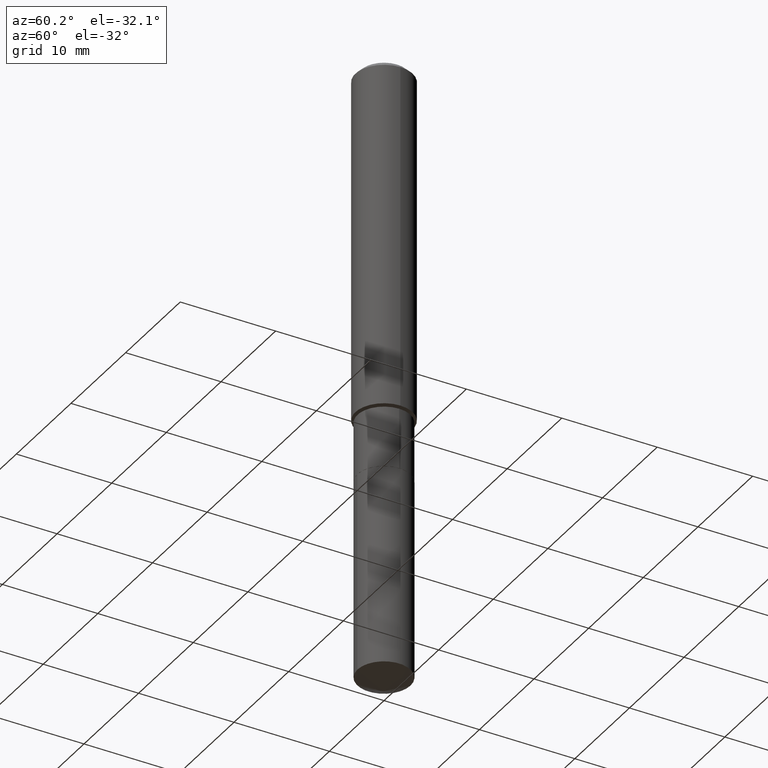
[diagram: clean part render]
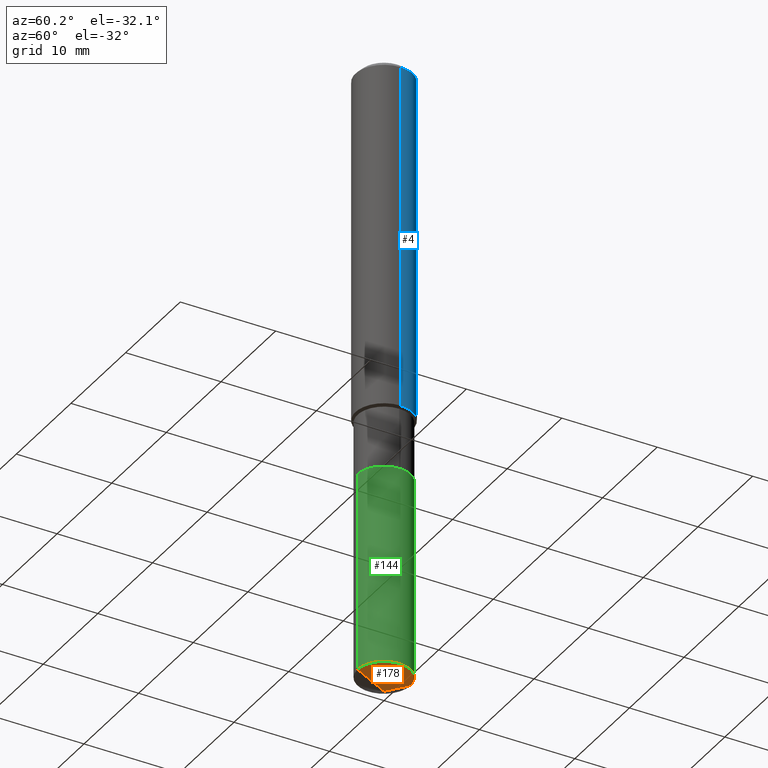
[diagram: same view with three faces highlighted in distinct colors, each labeled with its STEP entity id]
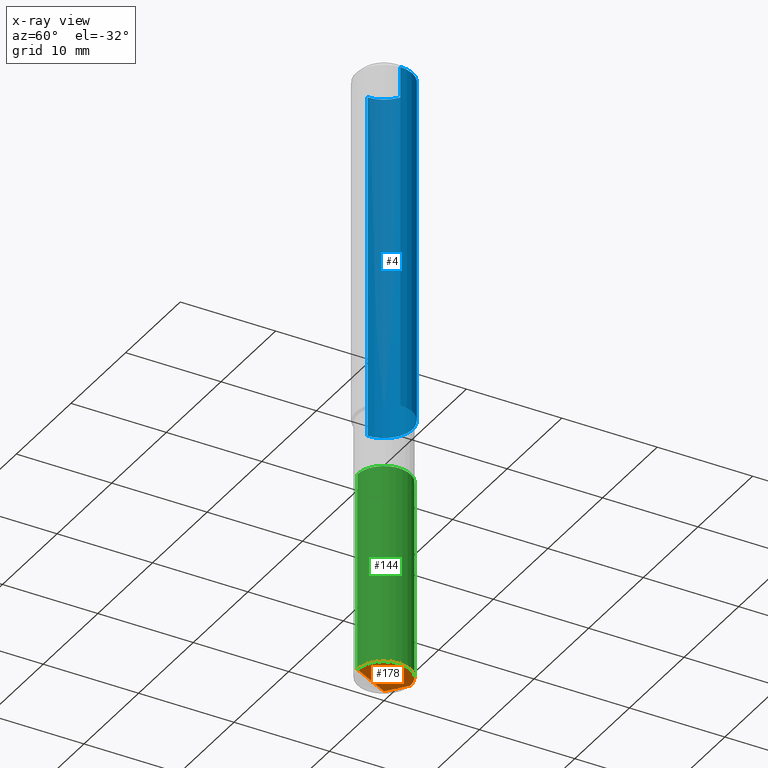
[diagram: x-ray of the same camera — body ghosted, the three highlighted faces saturated]
A machine part, auxiliary view with three faces highlighted in distinct colors.
The next image is the same camera in x-ray (body ghosted, the three faces saturated) — at least one of them is partly hidden behind the body in this view.
Their STEP definitions:

[orange] entity #178 — the highlighted conical surface has half-angle 62 deg.
#2 = AXIS2_PLACEMENT_3D ( 'NONE', #161, #382, #308 ) ;
#8 = VECTOR ( 'NONE', #366, 39.37007874015748854 ) ;
#26 = CIRCLE ( 'NONE', #310, 0.1093999999999999972 ) ;
#30 = DIRECTION ( 'NONE',  ( 6.273719981627762132E-15, 0.8829475928589292089, 0.4694715627858865870 ) ) ;
#65 = CONICAL_SURFACE ( 'NONE', #2, 74.04434902938338325, 1.082104136236485603 ) ;
#85 = CARTESIAN_POINT ( 'NONE',  ( 6.354323554254669973E-29, -9.072240181226292208E-15, -2.598399999999999821 ) ) ;
#105 = ORIENTED_EDGE ( 'NONE', *, *, #138, .F. ) ;
#115 = CARTESIAN_POINT ( 'NONE',  ( 6.212061172154443697E-29, -8.869161172201118079E-15, -2.540230988176234384 ) ) ;
#117 = EDGE_CURVE ( 'NONE', #207, #391, #412, .T. ) ;
#121 = FACE_OUTER_BOUND ( 'NONE', #490, .T. ) ;
#131 = EDGE_CURVE ( 'NONE', #207, #247, #368, .T. ) ;
#135 = CARTESIAN_POINT ( 'NONE',  ( -7.639361169388152518E-16, -0.1094000000000088374, -2.540230988176233495 ) ) ;
#138 = EDGE_CURVE ( 'NONE', #391, #247, #26, .T. ) ;
#161 = CARTESIAN_POINT ( 'NONE',  ( -8.992425115446358329E-28, 1.283872608714141360E-13, 36.77167874015748339 ) ) ;
#177 = ORIENTED_EDGE ( 'NONE', *, *, #117, .F. ) ;
#178 = ADVANCED_FACE ( 'NONE', ( #121 ), #65, .T. ) ;
#207 = VERTEX_POINT ( 'NONE', #85 ) ;
#218 = CARTESIAN_POINT ( 'NONE',  ( 6.354300577276716395E-29, -9.072273085566491700E-15, -2.598399999999999821 ) ) ;
#247 = VERTEX_POINT ( 'NONE', #423 ) ;
#308 = DIRECTION ( 'NONE',  ( -6.982962677686266711E-15, -1.000000000000000000, 3.541896320645568363E-15 ) ) ;
#310 = AXIS2_PLACEMENT_3D ( 'NONE', #115, #454, #347 ) ;
#337 = CARTESIAN_POINT ( 'NONE',  ( 6.354323755735645609E-29, -9.072240181226292208E-15, -2.598399999999999821 ) ) ;
#347 = DIRECTION ( 'NONE',  ( -6.982962677686265922E-15, -1.000000000000000000, 4.994237648380736877E-15 ) ) ;
#366 = DIRECTION ( 'NONE',  ( -6.165590087286829718E-15, -0.8829475928589257672, 0.4694715627858926932 ) ) ;
#368 = LINE ( 'NONE', #337, #456 ) ;
#382 = DIRECTION ( 'NONE',  ( -2.445475505793823769E-29, 3.491471744622187291E-15, 1.000000000000000000 ) ) ;
#391 = VERTEX_POINT ( 'NONE', #135 ) ;
#402 = ORIENTED_EDGE ( 'NONE', *, *, #131, .T. ) ;
#412 = LINE ( 'NONE', #218, #8 ) ;
#423 = CARTESIAN_POINT ( 'NONE',  ( 7.773337529216115094E-16, 0.1093999999999911155, -2.540230988176234828 ) ) ;
#454 = DIRECTION ( 'NONE',  ( -2.445475505793823769E-29, 3.491471744622187291E-15, 1.000000000000000000 ) ) ;
#456 = VECTOR ( 'NONE', #30, 39.37007874015748143 ) ;
#490 = EDGE_LOOP ( 'NONE', ( #177, #402, #105 ) ) ;

[blue] entity #4 — the highlighted cylindrical surface (edge-blend (fillet) strip) has radius 2.9997 mm, axis along (-0, 0, 1).
#4 = ADVANCED_FACE ( 'NONE', ( #416 ), #31, .T. ) ;
#13 = DIRECTION ( 'NONE',  ( 1.000000000000000000, -6.982962677686266711E-15, 0.000000000000000000 ) ) ;
#31 = CYLINDRICAL_SURFACE ( 'NONE', #155, 0.1181000000000000799 ) ;
#47 = LINE ( 'NONE', #273, #425 ) ;
#86 = VERTEX_POINT ( 'NONE', #267 ) ;
#92 = AXIS2_PLACEMENT_3D ( 'NONE', #140, #298, #446 ) ;
#126 = EDGE_CURVE ( 'NONE', #434, #86, #181, .T. ) ;
#140 = CARTESIAN_POINT ( 'NONE',  ( 3.556934378596280140E-29, -5.078359607347354252E-15, -1.454499999999999682 ) ) ;
#152 = EDGE_CURVE ( 'NONE', #86, #362, #427, .T. ) ;
#155 = AXIS2_PLACEMENT_3D ( 'NONE', #415, #228, #483 ) ;
#174 = DIRECTION ( 'NONE',  ( -2.445468806185136597E-29, 3.491481338843145583E-15, 1.000000000000000000 ) ) ;
#181 = CIRCLE ( 'NONE', #92, 0.1181000000000001632 ) ;
#201 = EDGE_CURVE ( 'NONE', #434, #358, #47, .T. ) ;
#203 = DIRECTION ( 'NONE',  ( -2.445468806185136877E-29, 3.491481338843145188E-15, 1.000000000000000000 ) ) ;
#228 = DIRECTION ( 'NONE',  ( -2.445468806185136597E-29, 3.491481338843145583E-15, 1.000000000000000000 ) ) ;
#249 = ORIENTED_EDGE ( 'NONE', *, *, #406, .F. ) ;
#251 = ORIENTED_EDGE ( 'NONE', *, *, #126, .T. ) ;
#253 = CARTESIAN_POINT ( 'NONE',  ( 5.776197320209327532E-31, -8.246878922347559293E-17, -0.02362000000000014088 ) ) ;
#267 = CARTESIAN_POINT ( 'NONE',  ( -0.1181000000000001632, -4.239208636414675266E-15, -1.454499999999999682 ) ) ;
#273 = CARTESIAN_POINT ( 'NONE',  ( 0.1181000000000000799, -8.246878922347486570E-16, 5.758764772215004644E-30 ) ) ;
#275 = AXIS2_PLACEMENT_3D ( 'NONE', #253, #174, #13 ) ;
#276 = DIRECTION ( 'NONE',  ( -2.445468806185136877E-29, 3.491481338843145188E-15, 1.000000000000000000 ) ) ;
#290 = ORIENTED_EDGE ( 'NONE', *, *, #152, .T. ) ;
#298 = DIRECTION ( 'NONE',  ( -2.445468806185136597E-29, 3.491481338843145583E-15, 1.000000000000000000 ) ) ;
#304 = CIRCLE ( 'NONE', #275, 0.1180999999999999966 ) ;
#339 = EDGE_LOOP ( 'NONE', ( #251, #290, #249, #470 ) ) ;
#344 = VECTOR ( 'NONE', #276, 39.37007874015748143 ) ;
#350 = CARTESIAN_POINT ( 'NONE',  ( -0.1181000000000000799, 8.391509709326788873E-16, -5.809262341591047988E-30 ) ) ;
#352 = CARTESIAN_POINT ( 'NONE',  ( 0.1181000000000001632, -5.903047499582104093E-15, -1.454499999999999682 ) ) ;
#357 = CARTESIAN_POINT ( 'NONE',  ( -0.1180999999999999966, -1.741263227352735474E-15, -0.02362000000000014088 ) ) ;
#358 = VERTEX_POINT ( 'NONE', #471 ) ;
#362 = VERTEX_POINT ( 'NONE', #357 ) ;
#406 = EDGE_CURVE ( 'NONE', #358, #362, #304, .T. ) ;
#415 = CARTESIAN_POINT ( 'NONE',  ( 0.000000000000000000, 0.000000000000000000, 0.000000000000000000 ) ) ;
#416 = FACE_OUTER_BOUND ( 'NONE', #339, .T. ) ;
#425 = VECTOR ( 'NONE', #203, 39.37007874015748143 ) ;
#427 = LINE ( 'NONE', #350, #344 ) ;
#434 = VERTEX_POINT ( 'NONE', #352 ) ;
#446 = DIRECTION ( 'NONE',  ( 1.000000000000000000, -6.982962677686263555E-15, 0.000000000000000000 ) ) ;
#470 = ORIENTED_EDGE ( 'NONE', *, *, #201, .F. ) ;
#471 = CARTESIAN_POINT ( 'NONE',  ( 0.1180999999999999966, -9.071566814582237199E-16, -0.02362000000000014088 ) ) ;
#483 = DIRECTION ( 'NONE',  ( 1.000000000000000000, -6.982962677686266711E-15, 4.876176775795936353E-29 ) ) ;

[green] entity #144 — the highlighted cylindrical surface (edge-blend (fillet) strip) has radius 2.7788 mm, axis along (-0, 0, 1).
#1 = CYLINDRICAL_SURFACE ( 'NONE', #221, 0.1093999999999999972 ) ;
#18 = CARTESIAN_POINT ( 'NONE',  ( -7.639361169388354664E-16, -0.1094000000000059925, -1.714799999999999436 ) ) ;
#26 = CIRCLE ( 'NONE', #310, 0.1093999999999999972 ) ;
#43 = EDGE_CURVE ( 'NONE', #247, #436, #376, .T. ) ;
#48 = DIRECTION ( 'NONE',  ( -2.445475505793823769E-29, 3.491471744622187291E-15, 1.000000000000000000 ) ) ;
#74 = DIRECTION ( 'NONE',  ( -6.982962677686265922E-15, -1.000000000000000000, 2.497118824190368439E-15 ) ) ;
#88 = LINE ( 'NONE', #399, #206 ) ;
#95 = ORIENTED_EDGE ( 'NONE', *, *, #332, .F. ) ;
#115 = CARTESIAN_POINT ( 'NONE',  ( 6.212061172154443697E-29, -8.869161172201118079E-15, -2.540230988176234384 ) ) ;
#135 = CARTESIAN_POINT ( 'NONE',  ( -7.639361169388152518E-16, -0.1094000000000088374, -2.540230988176233495 ) ) ;
#136 = EDGE_LOOP ( 'NONE', ( #356, #328, #95, #210 ) ) ;
#138 = EDGE_CURVE ( 'NONE', #391, #247, #26, .T. ) ;
#144 = ADVANCED_FACE ( 'NONE', ( #418 ), #1, .T. ) ;
#180 = DIRECTION ( 'NONE',  ( -2.445475505793823769E-29, 3.491471744622187291E-15, 1.000000000000000000 ) ) ;
#199 = CIRCLE ( 'NONE', #432, 0.1093999999999999972 ) ;
#206 = VECTOR ( 'NONE', #462, 39.37007874015748143 ) ;
#210 = ORIENTED_EDGE ( 'NONE', *, *, #413, .F. ) ;
#221 = AXIS2_PLACEMENT_3D ( 'NONE', #269, #459, #74 ) ;
#247 = VERTEX_POINT ( 'NONE', #423 ) ;
#269 = CARTESIAN_POINT ( 'NONE',  ( 4.193489908846271627E-29, -5.987192199848224509E-15, -1.714799999999999658 ) ) ;
#310 = AXIS2_PLACEMENT_3D ( 'NONE', #115, #454, #347 ) ;
#328 = ORIENTED_EDGE ( 'NONE', *, *, #43, .T. ) ;
#332 = EDGE_CURVE ( 'NONE', #431, #436, #199, .T. ) ;
#347 = DIRECTION ( 'NONE',  ( -6.982962677686265922E-15, -1.000000000000000000, 4.994237648380736877E-15 ) ) ;
#355 = CARTESIAN_POINT ( 'NONE',  ( 4.193489908846271627E-29, -5.987192199848224509E-15, -1.714799999999999658 ) ) ;
#356 = ORIENTED_EDGE ( 'NONE', *, *, #138, .T. ) ;
#376 = LINE ( 'NONE', #484, #424 ) ;
#391 = VERTEX_POINT ( 'NONE', #135 ) ;
#399 = CARTESIAN_POINT ( 'NONE',  ( -7.639361169388354664E-16, -0.1094000000000059925, -1.714799999999999436 ) ) ;
#403 = CARTESIAN_POINT ( 'NONE',  ( 7.773337529216117066E-16, 0.1093999999999940020, -1.714799999999999880 ) ) ;
#413 = EDGE_CURVE ( 'NONE', #391, #431, #88, .T. ) ;
#418 = FACE_OUTER_BOUND ( 'NONE', #136, .T. ) ;
#423 = CARTESIAN_POINT ( 'NONE',  ( 7.773337529216115094E-16, 0.1093999999999911155, -2.540230988176234828 ) ) ;
#424 = VECTOR ( 'NONE', #180, 39.37007874015748143 ) ;
#431 = VERTEX_POINT ( 'NONE', #18 ) ;
#432 = AXIS2_PLACEMENT_3D ( 'NONE', #355, #48, #464 ) ;
#436 = VERTEX_POINT ( 'NONE', #403 ) ;
#454 = DIRECTION ( 'NONE',  ( -2.445475505793823769E-29, 3.491471744622187291E-15, 1.000000000000000000 ) ) ;
#459 = DIRECTION ( 'NONE',  ( -2.445475505793823769E-29, 3.491471744622187291E-15, 1.000000000000000000 ) ) ;
#462 = DIRECTION ( 'NONE',  ( -2.445475505793823769E-29, 3.491471744622187291E-15, 1.000000000000000000 ) ) ;
#464 = DIRECTION ( 'NONE',  ( -6.982962677686265922E-15, -1.000000000000000000, 2.497118824190368439E-15 ) ) ;
#484 = CARTESIAN_POINT ( 'NONE',  ( 7.773337529215914920E-16, 0.1093999999999940020, -1.714799999999999880 ) ) ;